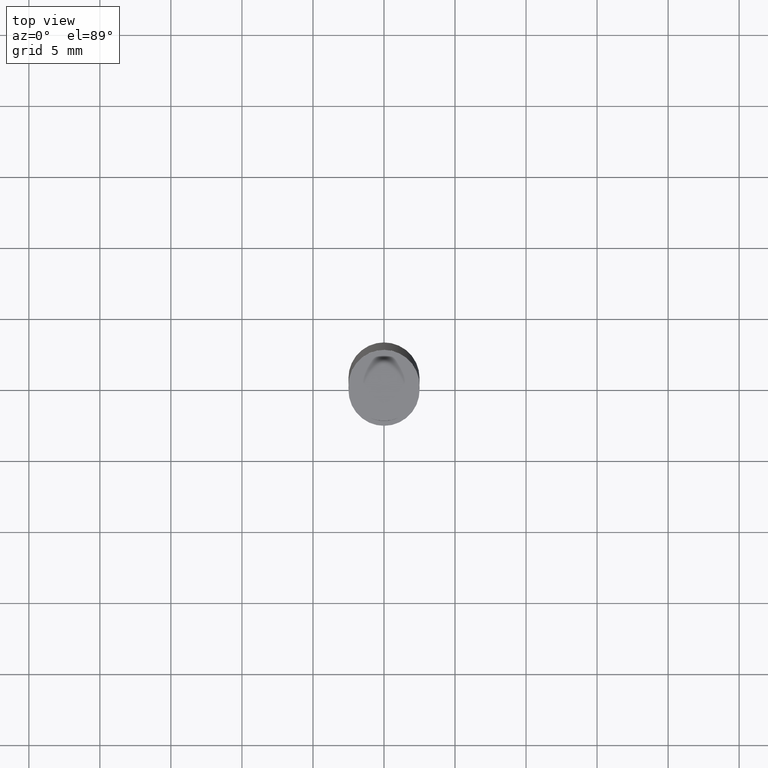
[diagram: clean part render]
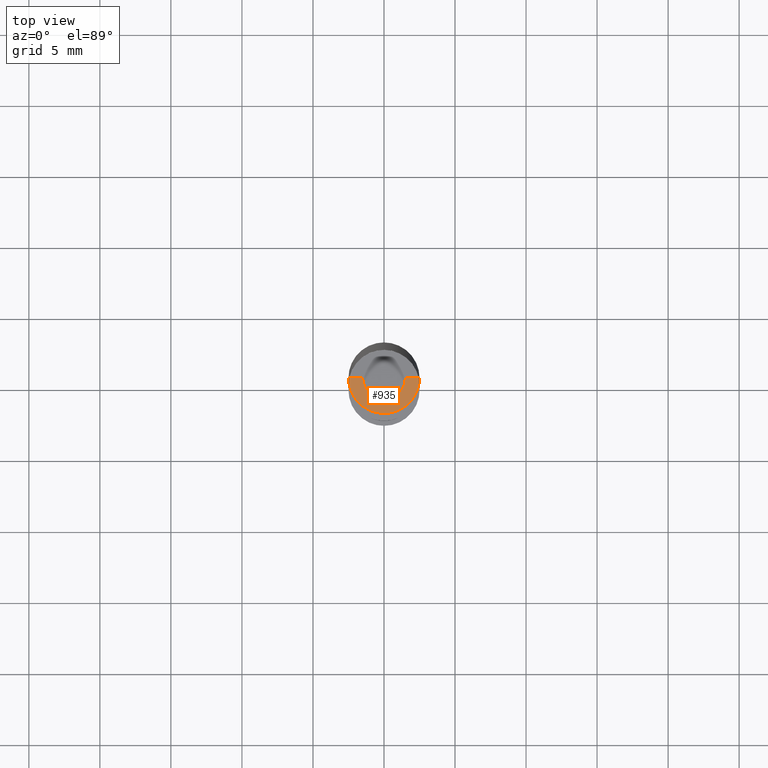
[diagram: same view with one face highlighted and labeled with its STEP entity id]
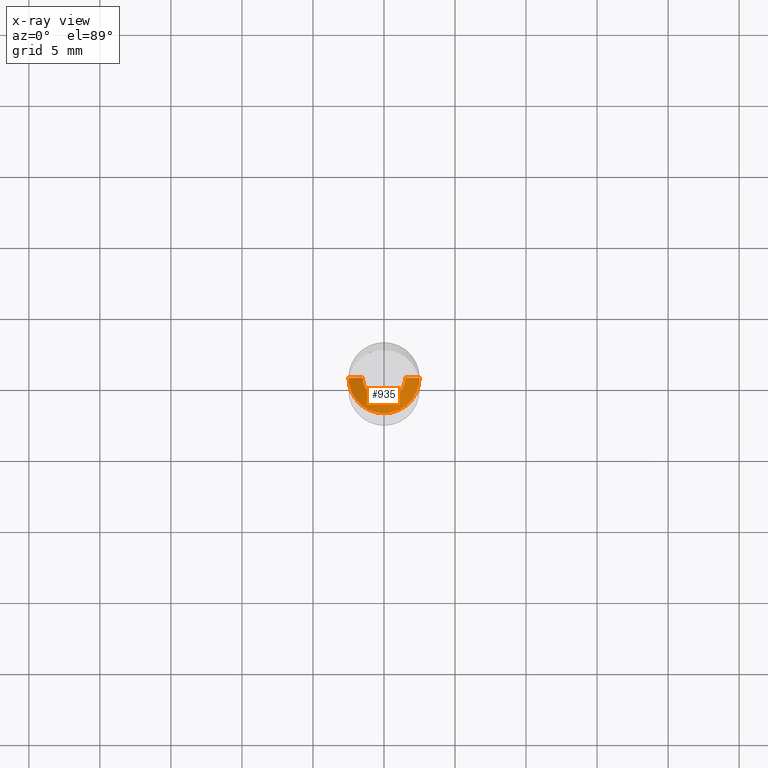
[diagram: x-ray of the same camera — body ghosted, the highlighted face saturated]
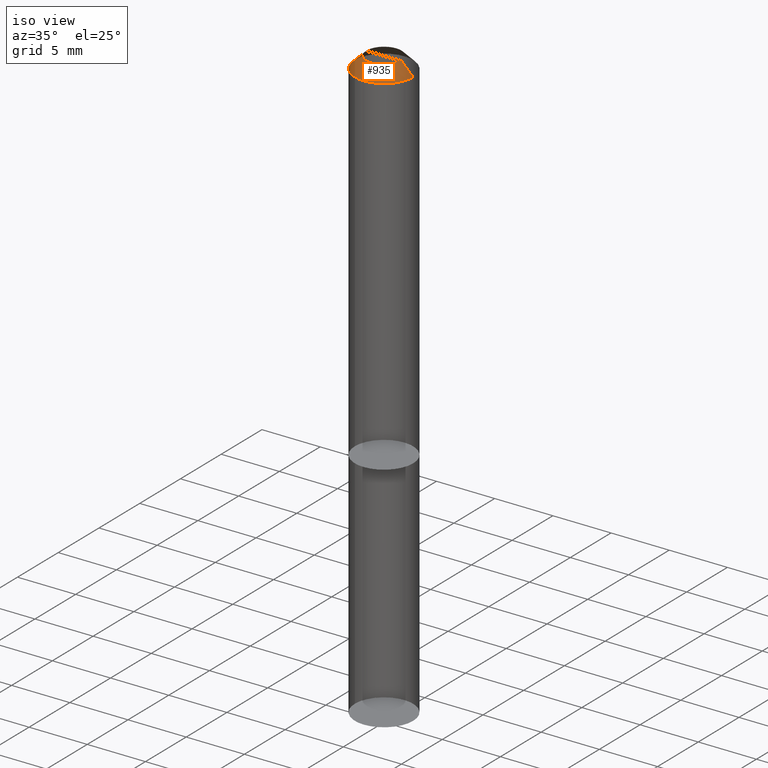
[diagram: same view with one face highlighted and labeled with its STEP entity id]
A machine part, top view. The second image highlights one B-rep face of the part: STEP entity #935.
The next image is the same camera in x-ray: the body ghosted, the highlighted face saturated — about 0% of this face is hidden behind the body in this view.
A second angle (iso view) of the same face is appended — the face is thin or edge-on in the first view.
In plain terms, the highlighted face is a freeform B-spline surface patch.
Its self-contained STEP definition (entity closure, byte-faithful):
#678=CARTESIAN_POINT('',(2.5,0.0,30.0));
#682=CARTESIAN_POINT('',(-2.5,0.0,30.0));
#683=CARTESIAN_POINT('',(1.5,0.0,31.0));
#687=CARTESIAN_POINT('',(-1.5,0.0,31.0));
#689=CARTESIAN_POINT('',(-2.5,-2.5,30.0));
#690=CARTESIAN_POINT('',(0.0,-2.5,30.0));
#691=CARTESIAN_POINT('',(2.5,-2.5,30.0));
#692=CARTESIAN_POINT('',(-1.5,-1.5,31.0));
#693=CARTESIAN_POINT('',(0.0,-1.5,31.0));
#694=CARTESIAN_POINT('',(1.5,-1.5,31.0));
#916=(
BOUNDED_SURFACE()
B_SPLINE_SURFACE(1,2,(
(#682,#689,#690,#691,#678),
(#687,#692,#693,#694,#683)
), .UNSPECIFIED.,.F.,.F.,.F.)
B_SPLINE_SURFACE_WITH_KNOTS((2,2),(3,2,3),(
0.0,1.0),(
0.0,0.5,1.0), .UNSPECIFIED.)
GEOMETRIC_REPRESENTATION_ITEM()
RATIONAL_B_SPLINE_SURFACE(((1.0,0.707106781187,1.0,0.707106781187,1.0),
(1.0,0.707106781187,1.0,0.707106781187,1.0)
))
REPRESENTATION_ITEM('')
SURFACE()
);
#917=(
BOUNDED_CURVE()
B_SPLINE_CURVE(2,(#678,#691,#690,#689,#682),.UNSPECIFIED.,.F.,.F.)
B_SPLINE_CURVE_WITH_KNOTS((3,2,3),
(0.0,0.5,1.0),.UNSPECIFIED.)
CURVE()
GEOMETRIC_REPRESENTATION_ITEM()
RATIONAL_B_SPLINE_CURVE((1.0,0.707106781187,1.0,0.707106781187,1.0))
REPRESENTATION_ITEM('')
);
#918=(
BOUNDED_CURVE()
B_SPLINE_CURVE(1,(#682,#687),.UNSPECIFIED.,.F.,.F.)
B_SPLINE_CURVE_WITH_KNOTS((2,2),
(0.0,1.0),.UNSPECIFIED.)
CURVE()
GEOMETRIC_REPRESENTATION_ITEM()
RATIONAL_B_SPLINE_CURVE((1.0,1.0))
REPRESENTATION_ITEM('')
);
#919=(
BOUNDED_CURVE()
B_SPLINE_CURVE(2,(#687,#692,#693,#694,#683),.UNSPECIFIED.,.F.,.F.)
B_SPLINE_CURVE_WITH_KNOTS((3,2,3),
(0.0,0.5,1.0),.UNSPECIFIED.)
CURVE()
GEOMETRIC_REPRESENTATION_ITEM()
RATIONAL_B_SPLINE_CURVE((1.0,0.707106781187,1.0,0.707106781187,1.0))
REPRESENTATION_ITEM('')
);
#920=(
BOUNDED_CURVE()
B_SPLINE_CURVE(1,(#683,#678),.UNSPECIFIED.,.F.,.F.)
B_SPLINE_CURVE_WITH_KNOTS((2,2),
(0.0,1.0),.UNSPECIFIED.)
CURVE()
GEOMETRIC_REPRESENTATION_ITEM()
RATIONAL_B_SPLINE_CURVE((1.0,1.0))
REPRESENTATION_ITEM('')
);
#921=VERTEX_POINT('',#678);
#922=VERTEX_POINT('',#682);
#923=VERTEX_POINT('',#683);
#924=VERTEX_POINT('',#687);
#925=EDGE_CURVE('',#921,#922,#917,.T.);
#926=EDGE_CURVE('',#922,#924,#918,.T.);
#927=EDGE_CURVE('',#924,#923,#919,.T.);
#928=EDGE_CURVE('',#923,#921,#920,.T.);
#929=ORIENTED_EDGE('',*,*,#925,.T.);
#930=ORIENTED_EDGE('',*,*,#926,.T.);
#931=ORIENTED_EDGE('',*,*,#927,.T.);
#932=ORIENTED_EDGE('',*,*,#928,.T.);
#933=EDGE_LOOP('',(#929,#930,#931,#932));
#934=FACE_OUTER_BOUND('',#933,.T.);
#935=ADVANCED_FACE('',(#934),#916,.T.);